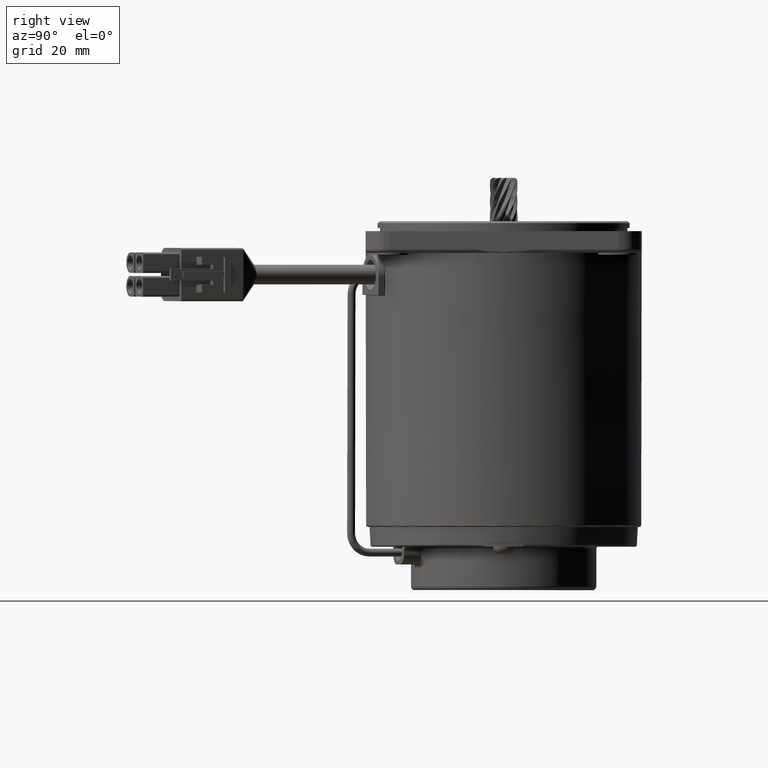
[diagram: clean part render]
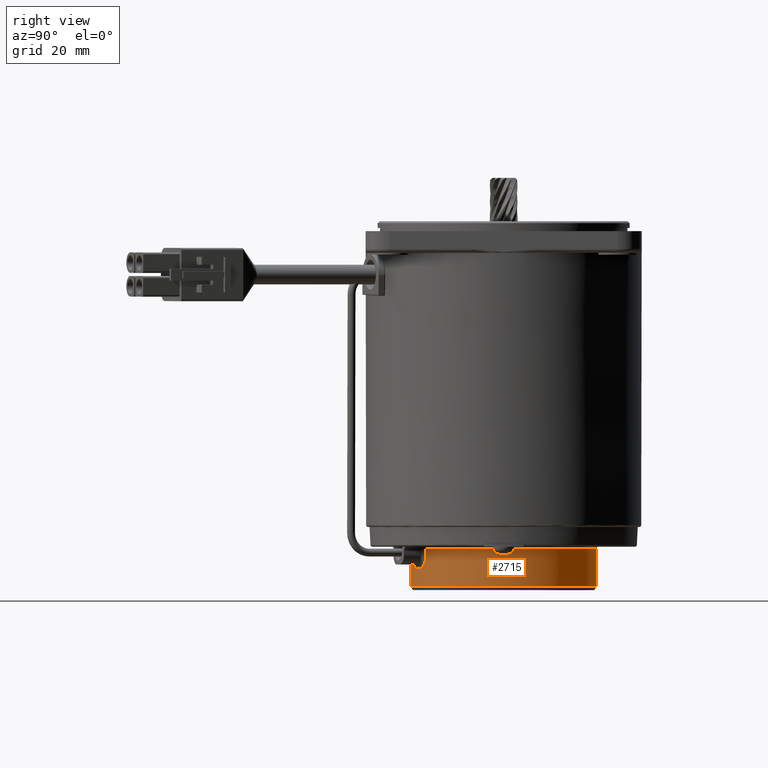
[diagram: same view with one face highlighted and labeled with its STEP entity id]
A machine part, right view. The second image highlights one B-rep face of the part: STEP entity #2715.
In plain terms, the highlighted cylindrical surface (partial cylindrical patch) has radius 23.5 mm, axis along (-0, -0, 1).
Its self-contained STEP definition (entity closure, byte-faithful):
#2206 = VERTEX_POINT ( 'NONE', #12822 ) ;
#2236 = VERTEX_POINT ( 'NONE', #13576 ) ;
#2238 = EDGE_CURVE ( 'NONE', #2247, #2236, #13577, .T. ) ;
#2246 = VERTEX_POINT ( 'NONE', #13571 ) ;
#2247 = VERTEX_POINT ( 'NONE', #13627 ) ;
#2250 = EDGE_CURVE ( 'NONE', #2263, #2246, #13611, .T. ) ;
#2251 = VERTEX_POINT ( 'NONE', #13618 ) ;
#2255 = EDGE_CURVE ( 'NONE', #2206, #2251, #13625, .T. ) ;
#2263 = VERTEX_POINT ( 'NONE', #13572 ) ;
#2323 = VERTEX_POINT ( 'NONE', #12924 ) ;
#2349 = VERTEX_POINT ( 'NONE', #13744 ) ;
#2350 = EDGE_CURVE ( 'NONE', #2246, #2349, #13734, .T. ) ;
#2369 = VERTEX_POINT ( 'NONE', #13720 ) ;
#2370 = VERTEX_POINT ( 'NONE', #13758 ) ;
#2371 = EDGE_CURVE ( 'NONE', #2323, #2247, #13799, .T. ) ;
#2396 = VERTEX_POINT ( 'NONE', #13916 ) ;
#2405 = EDGE_CURVE ( 'NONE', #2396, #2369, #14002, .T. ) ;
#2407 = EDGE_CURVE ( 'NONE', #2423, #2251, #13996, .T. ) ;
#2423 = VERTEX_POINT ( 'NONE', #14297 ) ;
#2429 = EDGE_CURVE ( 'NONE', #2370, #2323, #14306, .T. ) ;
#2436 = EDGE_CURVE ( 'NONE', #2369, #2370, #14330, .T. ) ;
#2471 = EDGE_CURVE ( 'NONE', #2236, #2349, #14606, .T. ) ;
#2478 = EDGE_CURVE ( 'NONE', #2423, #2396, #14609, .T. ) ;
#2650 = ORIENTED_EDGE ( 'NONE', *, *, #2478, .T. ) ;
#2652 = ORIENTED_EDGE ( 'NONE', *, *, #2250, .F. ) ;
#2697 = ORIENTED_EDGE ( 'NONE', *, *, #2407, .F. ) ;
#2698 = ORIENTED_EDGE ( 'NONE', *, *, #2238, .T. ) ;
#2699 = ORIENTED_EDGE ( 'NONE', *, *, #2436, .T. ) ;
#2702 = ORIENTED_EDGE ( 'NONE', *, *, #2371, .T. ) ;
#2705 = ORIENTED_EDGE ( 'NONE', *, *, #2471, .T. ) ;
#2706 = ORIENTED_EDGE ( 'NONE', *, *, #2350, .F. ) ;
#2711 = EDGE_LOOP ( 'NONE', ( #2652, #2714, #2712, #2697, #2650, #2717, #2699, #2716, #2702, #2698, #2705, #2706 ) ) ;
#2712 = ORIENTED_EDGE ( 'NONE', *, *, #2255, .T. ) ;
#2714 = ORIENTED_EDGE ( 'NONE', *, *, #2718, .T. ) ;
#2715 = ADVANCED_FACE ( 'NONE', ( #15386 ), #15396, .T. ) ;
#2716 = ORIENTED_EDGE ( 'NONE', *, *, #2429, .T. ) ;
#2717 = ORIENTED_EDGE ( 'NONE', *, *, #2405, .T. ) ;
#2718 = EDGE_CURVE ( 'NONE', #2263, #2206, #15389, .T. ) ;
#12822 = CARTESIAN_POINT ( 'NONE',  ( 11.92943035724918700, 0.0000000000000000000, 23.50000000000000000 ) ) ;
#12924 = CARTESIAN_POINT ( 'NONE',  ( 7.429430357249188400, -8.099396278223359500, -22.06014007045969900 ) ) ;
#13571 = CARTESIAN_POINT ( 'NONE',  ( 2.429430357249188400, 2.908536147974964100E-015, -23.49999999999999600 ) ) ;
#13572 = CARTESIAN_POINT ( 'NONE',  ( 11.92943035724918700, 2.877919977996280300E-015, -23.50000000000000000 ) ) ;
#13576 = CARTESIAN_POINT ( 'NONE',  ( 2.437936700971944600, -4.852298793114232300, -22.99359033344601900 ) ) ;
#13577 = LINE ( 'NONE', #13623, #13622 ) ;
#13600 = DIRECTION ( 'NONE',  ( -1.000000000000000000, -0.0000000000000000000, -0.0000000000000000000 ) ) ;
#13601 = VECTOR ( 'NONE', #13600, 1000.000000000000000 ) ;
#13607 = VECTOR ( 'NONE', #13612, 1000.000000000000000 ) ;
#13611 = LINE ( 'NONE', #13613, #13607 ) ;
#13612 = DIRECTION ( 'NONE',  ( -1.000000000000000000, -0.0000000000000000000, -0.0000000000000000000 ) ) ;
#13613 = CARTESIAN_POINT ( 'NONE',  ( 0.0000000000000000000, 2.877919977996280300E-015, -23.50000000000000000 ) ) ;
#13618 = CARTESIAN_POINT ( 'NONE',  ( 2.429430357249188400, 0.0000000000000000000, 23.49999999999999600 ) ) ;
#13621 = DIRECTION ( 'NONE',  ( -1.000000000000000000, -0.0000000000000000000, -0.0000000000000000000 ) ) ;
#13622 = VECTOR ( 'NONE', #13621, 1000.000000000000000 ) ;
#13623 = CARTESIAN_POINT ( 'NONE',  ( 0.0000000000000000000, -4.852298793114271400, -22.99359033344601500 ) ) ;
#13624 = CARTESIAN_POINT ( 'NONE',  ( 0.0000000000000000000, 0.0000000000000000000, 23.50000000000000000 ) ) ;
#13625 = LINE ( 'NONE', #13624, #13601 ) ;
#13627 = CARTESIAN_POINT ( 'NONE',  ( 3.929430357249188000, -4.852298793114269600, -22.99359033344600800 ) ) ;
#13720 = CARTESIAN_POINT ( 'NONE',  ( 3.929430357249188000, -12.82783026765049400, -19.69001702955966900 ) ) ;
#13721 = DIRECTION ( 'NONE',  ( 0.0000000000000000000, 0.0000000000000000000, 1.000000000000000000 ) ) ;
#13722 = DIRECTION ( 'NONE',  ( -1.000000000000000000, -0.0000000000000000000, -0.0000000000000000000 ) ) ;
#13723 = CARTESIAN_POINT ( 'NONE',  ( 2.429430357249188400, 0.0000000000000000000, 0.0000000000000000000 ) ) ;
#13729 = AXIS2_PLACEMENT_3D ( 'NONE', #13723, #13722, #13721 ) ;
#13734 = CIRCLE ( 'NONE', #13729, 23.49999999999999600 ) ;
#13744 = CARTESIAN_POINT ( 'NONE',  ( 2.429430357249188400, -4.762720967986965100, -23.01231168268623200 ) ) ;
#13758 = CARTESIAN_POINT ( 'NONE',  ( 7.429430357249188400, -9.871736605898073300, -21.32601266959606400 ) ) ;
#13777 = CARTESIAN_POINT ( 'NONE',  ( 3.929430357249188000, -4.852298793114269600, -22.99359033344600800 ) ) ;
#13778 = CARTESIAN_POINT ( 'NONE',  ( 4.156406314958556600, -4.852298793114271400, -22.99359033344601500 ) ) ;
#13779 = CARTESIAN_POINT ( 'NONE',  ( 4.381070916956040200, -4.873192704452379500, -22.98921060605545500 ) ) ;
#13780 = CARTESIAN_POINT ( 'NONE',  ( 4.825806642985479100, -4.956431943181574900, -22.97140818097380000 ) ) ;
#13781 = CARTESIAN_POINT ( 'NONE',  ( 5.042944267885994600, -5.018488015400511600, -22.95804010240310300 ) ) ;
#13782 = CARTESIAN_POINT ( 'NONE',  ( 5.459066532733367600, -5.179805811753173100, -22.92218224900926800 ) ) ;
#13783 = CARTESIAN_POINT ( 'NONE',  ( 5.660449463067425100, -5.279980718519008900, -22.89948970818744600 ) ) ;
#13784 = CARTESIAN_POINT ( 'NONE',  ( 6.041905773072846500, -5.516986336582171200, -22.84354803977002400 ) ) ;
#13785 = CARTESIAN_POINT ( 'NONE',  ( 6.218367778673764300, -5.651275143706685700, -22.81089511323584400 ) ) ;
#13786 = CARTESIAN_POINT ( 'NONE',  ( 6.543151168526617500, -5.950564654207763500, -22.73465695613234400 ) ) ;
#13787 = CARTESIAN_POINT ( 'NONE',  ( 6.692812114198986300, -6.117692845702585200, -22.69047397136881000 ) ) ;
#13788 = CARTESIAN_POINT ( 'NONE',  ( 6.951845698761835600, -6.471819696888298200, -22.59201904679381900 ) ) ;
#13789 = CARTESIAN_POINT ( 'NONE',  ( 7.062110679504779200, -6.658890986025245000, -22.53778255780873300 ) ) ;
#13790 = CARTESIAN_POINT ( 'NONE',  ( 7.243135182861332000, -7.053133497862822800, -22.41753286265375800 ) ) ;
#13791 = CARTESIAN_POINT ( 'NONE',  ( 7.313155023996036300, -7.260366025519458000, -22.35139918004812300 ) ) ;
#13792 = CARTESIAN_POINT ( 'NONE',  ( 7.405668589999622000, -7.675657166100319500, -22.21220941731970900 ) ) ;
#13793 = CARTESIAN_POINT ( 'NONE',  ( 7.429430357249190200, -7.886086119504385600, -22.13845704850777800 ) ) ;
#13794 = CARTESIAN_POINT ( 'NONE',  ( 7.429430357249188400, -8.099396278223359500, -22.06014007045969900 ) ) ;
#13799 = B_SPLINE_CURVE_WITH_KNOTS ( 'NONE', 3,
 ( #13794, #13793, #13792, #13791, #13790, #13789, #13788, #13787, #13786, #13785, #13784, #13783, #13782, #13781, #13780, #13779, #13778, #13777 ),
 .UNSPECIFIED., .F., .F.,
 ( 4, 2, 2, 2, 2, 2, 2, 2, 4 ),
 ( 0.0000000000000000000, 0.0006711107629511813300, 0.001342221525902362700, 0.002013332288853544000, 0.002684443051804725300, 0.003355553814755906700, 0.004026664577707088000, 0.004697775340658269300, 0.005368886103609450700 ),
 .UNSPECIFIED. ) ;
#13916 = CARTESIAN_POINT ( 'NONE',  ( 2.437936700971945900, -12.82783026765052800, -19.69001702955965200 ) ) ;
#13995 = AXIS2_PLACEMENT_3D ( 'NONE', #14000, #14042, #14041 ) ;
#13996 = CIRCLE ( 'NONE', #13995, 23.49999999999999600 ) ;
#14000 = CARTESIAN_POINT ( 'NONE',  ( 2.429430357249188400, 0.0000000000000000000, 0.0000000000000000000 ) ) ;
#14001 = CARTESIAN_POINT ( 'NONE',  ( 0.0000000000000000000, -12.82783026765049400, -19.69001702955967300 ) ) ;
#14002 = LINE ( 'NONE', #14001, #14006 ) ;
#14006 = VECTOR ( 'NONE', #14043, 1000.000000000000000 ) ;
#14041 = DIRECTION ( 'NONE',  ( 0.0000000000000000000, 0.0000000000000000000, 1.000000000000000000 ) ) ;
#14042 = DIRECTION ( 'NONE',  ( -1.000000000000000000, -0.0000000000000000000, -0.0000000000000000000 ) ) ;
#14043 = DIRECTION ( 'NONE',  ( 1.000000000000000000, 0.0000000000000000000, 0.0000000000000000000 ) ) ;
#14297 = CARTESIAN_POINT ( 'NONE',  ( 2.429430357249188400, -12.90440934824268400, -19.63991393496892700 ) ) ;
#14306 = CIRCLE ( 'NONE', #14327, 23.50000000000000000 ) ;
#14324 = DIRECTION ( 'NONE',  ( 0.0000000000000000000, 0.0000000000000000000, 1.000000000000000000 ) ) ;
#14325 = DIRECTION ( 'NONE',  ( 1.000000000000000000, -0.0000000000000000000, -0.0000000000000000000 ) ) ;
#14326 = CARTESIAN_POINT ( 'NONE',  ( 7.429430357249188400, 0.0000000000000000000, 0.0000000000000000000 ) ) ;
#14327 = AXIS2_PLACEMENT_3D ( 'NONE', #14326, #14325, #14324 ) ;
#14330 = B_SPLINE_CURVE_WITH_KNOTS ( 'NONE', 3,
 ( #14365, #14364, #14363, #14362, #14361, #14357, #14356, #14355, #14354, #14353, #14352, #14351, #14350, #14349, #14348, #14347, #14346, #14345 ),
 .UNSPECIFIED., .F., .F.,
 ( 4, 2, 2, 2, 2, 2, 2, 2, 4 ),
 ( 0.0000000000000000000, 0.0006718188171191637000, 0.001343637634238327400, 0.002015456451357491000, 0.002687275268476654800, 0.003359094085595818600, 0.004030912902714982000, 0.004702731719834146200, 0.005374550536953309600 ),
 .UNSPECIFIED. ) ;
#14345 = CARTESIAN_POINT ( 'NONE',  ( 7.429430357249188400, -9.871736605898073300, -21.32601266959606400 ) ) ;
#14346 = CARTESIAN_POINT ( 'NONE',  ( 7.429430357249190200, -10.07790146528821000, -21.23057967793359100 ) ) ;
#14347 = CARTESIAN_POINT ( 'NONE',  ( 7.405673453355948500, -10.28004931782613500, -21.13337785144810600 ) ) ;
#14348 = CARTESIAN_POINT ( 'NONE',  ( 7.311540443401117500, -10.67661896783857000, -20.93582768377225300 ) ) ;
#14349 = CARTESIAN_POINT ( 'NONE',  ( 7.241581491130889800, -10.86782825293341200, -20.83703953644326700 ) ) ;
#14350 = CARTESIAN_POINT ( 'NONE',  ( 7.061338605945589800, -11.22918302050538000, -20.64454785822521600 ) ) ;
#14351 = CARTESIAN_POINT ( 'NONE',  ( 6.949624696762643200, -11.40201099472330000, -20.54940848607697000 ) ) ;
#14352 = CARTESIAN_POINT ( 'NONE',  ( 6.688664033049418500, -11.72327192396390300, -20.36784080967451900 ) ) ;
#14353 = CARTESIAN_POINT ( 'NONE',  ( 6.541778299206959500, -11.86943809950462400, -20.28275831291464500 ) ) ;
#14354 = CARTESIAN_POINT ( 'NONE',  ( 6.216595931128645200, -12.13496044664927700, -20.12502374001923400 ) ) ;
#14355 = CARTESIAN_POINT ( 'NONE',  ( 6.036286208384013600, -12.25512050279969700, -20.05184691416927800 ) ) ;
#14356 = CARTESIAN_POINT ( 'NONE',  ( 5.657238744005990600, -12.46027022499721300, -19.92501465814941900 ) ) ;
#14357 = CARTESIAN_POINT ( 'NONE',  ( 5.457725631510379900, -12.54637675695526500, -19.87071510589838000 ) ) ;
#14361 = CARTESIAN_POINT ( 'NONE',  ( 5.038715370926542600, -12.68642074975057600, -19.78159794120645600 ) ) ;
#14362 = CARTESIAN_POINT ( 'NONE',  ( 4.819926470801441100, -12.73964994609273100, -19.74722952268163600 ) ) ;
#14363 = CARTESIAN_POINT ( 'NONE',  ( 4.379806124822121800, -12.80996570044772300, -19.70168859067167600 ) ) ;
#14364 = CARTESIAN_POINT ( 'NONE',  ( 4.156370762093855500, -12.82783026765049800, -19.69001702955967300 ) ) ;
#14365 = CARTESIAN_POINT ( 'NONE',  ( 3.929430357249188000, -12.82783026765049400, -19.69001702955966900 ) ) ;
#14606 = B_SPLINE_CURVE_WITH_KNOTS ( 'NONE', 3,
 ( #14640, #14639, #14638, #14637 ),
 .UNSPECIFIED., .F., .F.,
 ( 4, 4 ),
 ( 0.0000000000000000000, 9.190774480659957300E-005 ),
 .UNSPECIFIED. ) ;
#14609 = B_SPLINE_CURVE_WITH_KNOTS ( 'NONE', 3,
 ( #14669, #14668, #14667, #14666 ),
 .UNSPECIFIED., .F., .F.,
 ( 4, 4 ),
 ( 0.0000000000000000000, 9.190774480660641700E-005 ),
 .UNSPECIFIED. ) ;
#14637 = CARTESIAN_POINT ( 'NONE',  ( 2.429430357249188400, -4.762720967986965100, -23.01231168268623200 ) ) ;
#14638 = CARTESIAN_POINT ( 'NONE',  ( 2.429430357249012600, -4.792721105143621200, -23.00610273313572700 ) ) ;
#14639 = CARTESIAN_POINT ( 'NONE',  ( 2.432288484881242500, -4.822836915436835300, -22.99980762406587300 ) ) ;
#14640 = CARTESIAN_POINT ( 'NONE',  ( 2.437936700971944600, -4.852298793114232300, -22.99359033344601900 ) ) ;
#14666 = CARTESIAN_POINT ( 'NONE',  ( 2.437936700971945900, -12.82783026765052800, -19.69001702955965200 ) ) ;
#14667 = CARTESIAN_POINT ( 'NONE',  ( 2.432288484881031100, -12.85305924950061000, -19.67358062442538000 ) ) ;
#14668 = CARTESIAN_POINT ( 'NONE',  ( 2.429430357249189800, -12.87880565749150300, -19.65673684505769400 ) ) ;
#14669 = CARTESIAN_POINT ( 'NONE',  ( 2.429430357249188400, -12.90440934824268400, -19.63991393496892700 ) ) ;
#15384 = DIRECTION ( 'NONE',  ( -1.000000000000000000, -0.0000000000000000000, -0.0000000000000000000 ) ) ;
#15385 = CARTESIAN_POINT ( 'NONE',  ( 0.0000000000000000000, 0.0000000000000000000, 0.0000000000000000000 ) ) ;
#15386 = FACE_OUTER_BOUND ( 'NONE', #2711, .T. ) ;
#15388 = CARTESIAN_POINT ( 'NONE',  ( 11.92943035724918700, 0.0000000000000000000, 0.0000000000000000000 ) ) ;
#15389 = CIRCLE ( 'NONE', #15434, 23.50000000000000000 ) ;
#15396 = CYLINDRICAL_SURFACE ( 'NONE', #15398, 23.50000000000000000 ) ;
#15398 = AXIS2_PLACEMENT_3D ( 'NONE', #15385, #15384, #15436 ) ;
#15432 = DIRECTION ( 'NONE',  ( 0.0000000000000000000, 0.0000000000000000000, 1.000000000000000000 ) ) ;
#15433 = DIRECTION ( 'NONE',  ( -1.000000000000000000, -0.0000000000000000000, -0.0000000000000000000 ) ) ;
#15434 = AXIS2_PLACEMENT_3D ( 'NONE', #15388, #15433, #15432 ) ;
#15436 = DIRECTION ( 'NONE',  ( 0.0000000000000000000, 0.0000000000000000000, 1.000000000000000000 ) ) ;